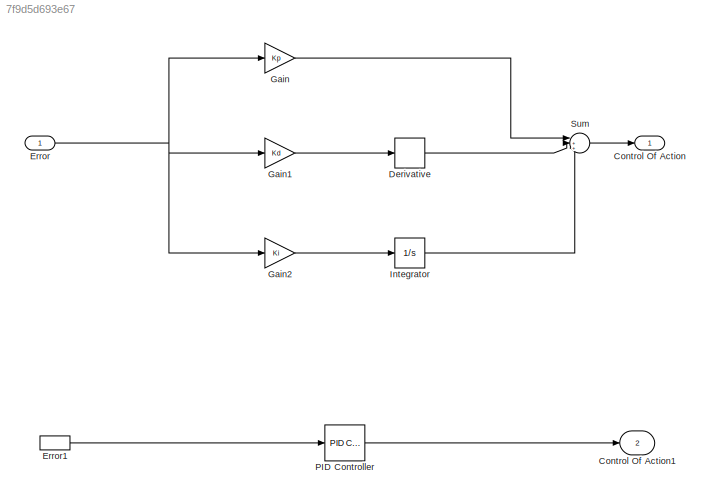
MODEL slx_7f9d5d693e67
KIND model
CONFIG AbsTol = auto
CONFIG EnableMultiTasking = off
CONFIG FixedStep = auto
CONFIG MaxStep = auto
CONFIG MinStep = auto
CONFIG RelTol = 1e-3
CONFIG SampleTimeConstraint = Unconstrained
CONFIG SolverName = VariableStepAuto
CONFIG StartTime = 0.0
CONFIG StopTime = 10.0
BLOCK [Outport] Control Of Action
BLOCK [Outport] Control Of Action1
  Port = 2
BLOCK [Derivative] Derivative
BLOCK [Inport] Error
BLOCK [InportShadow] Error1
BLOCK [Gain] Gain
  Gain = Kp
BLOCK [Gain] Gain1
  Gain = Kd
BLOCK [Gain] Gain2
  Gain = Ki
BLOCK [Integrator] Integrator
BLOCK [Reference] PID Controller  REF=slpidlib/PID Controller
  LibrarySourceBlock = simulink/Continuous/PID Controller
  SourceBlock = slpidlib/PID Controller
  SourceType = PID 1dof
BLOCK [Sum] Sum
  Inputs = |+++
LINE Derivative:1 -> Sum:2
LINE Error1:1 -> PID Controller:1
NET Error:1 -> Gain1:1, Gain2:1, Gain:1
LINE Gain1:1 -> Derivative:1
LINE Gain2:1 -> Integrator:1
LINE Gain:1 -> Sum:1
LINE Integrator:1 -> Sum:3
LINE PID Controller:1 -> Control Of Action1:1
LINE Sum:1 -> Control Of Action:1
note: NET lines group one-source signal fan-out (src -> all destinations, sorted); 1:1 wires keep LINE
